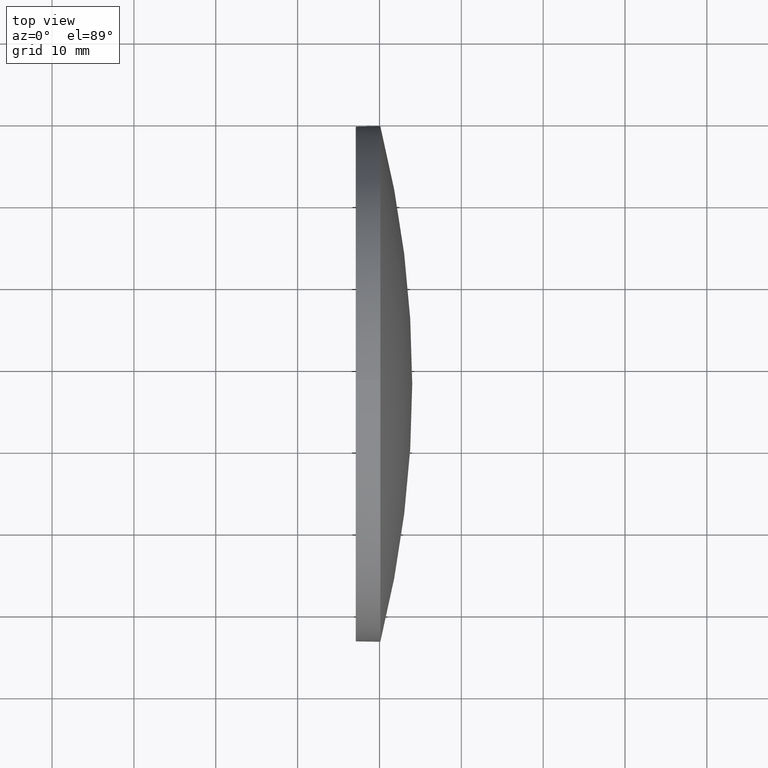
[diagram: clean part render]
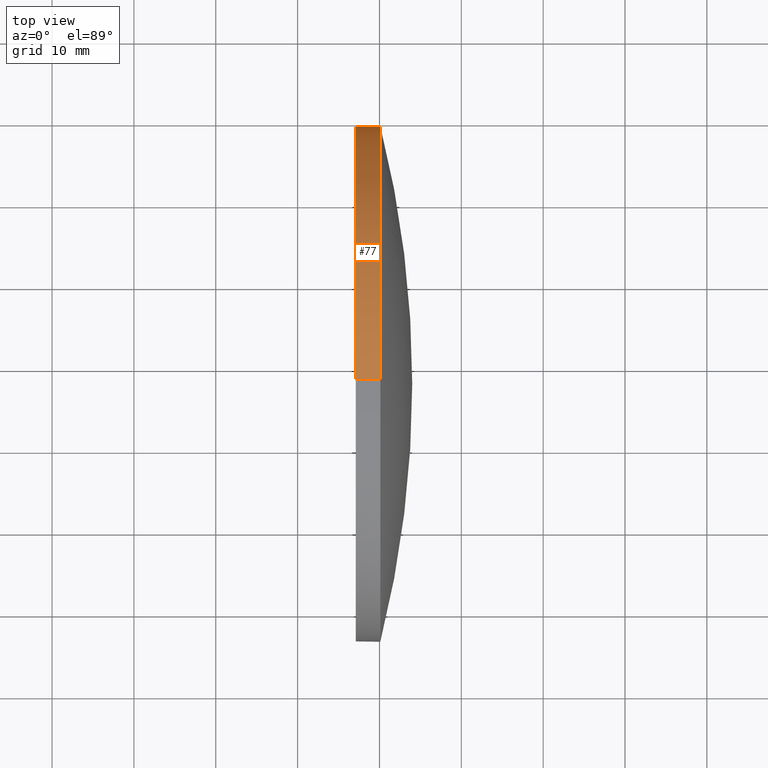
[diagram: same view with one face highlighted and labeled with its STEP entity id]
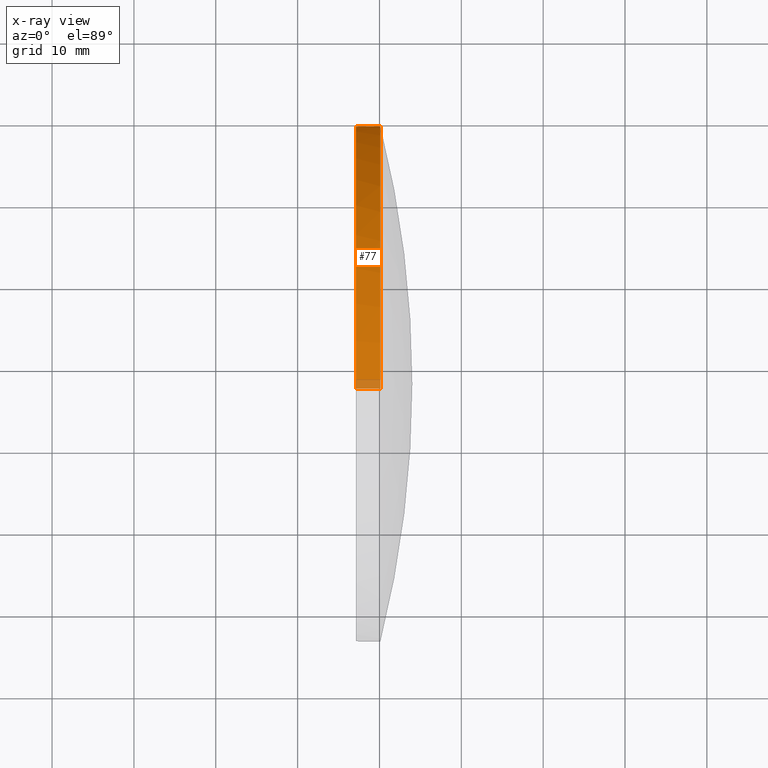
[diagram: x-ray of the same camera — body ghosted, the highlighted face saturated]
A machine part, top view. The second image highlights one B-rep face of the part: STEP entity #77.
The next image is the same camera in x-ray: the body ghosted, the highlighted face saturated — about 3% of this face is hidden behind the body in this view.
In plain terms, the highlighted cylindrical surface (partial cylindrical patch) has radius 31.5 mm, axis along (-1, -0, -0).
Its self-contained STEP definition (entity closure, byte-faithful):
#6 = VERTEX_POINT ( 'NONE', #98 ) ;
#8 = CIRCLE ( 'NONE', #11, 31.50000000000000700 ) ;
#9 = CARTESIAN_POINT ( 'NONE',  ( 458.3320207545457400, 57.89546231009239800, 0.0000000000000000000 ) ) ;
#11 = AXIS2_PLACEMENT_3D ( 'NONE', #161, #90, #185 ) ;
#16 = CARTESIAN_POINT ( 'NONE',  ( 467.1016550187782700, 57.89546231009239800, 31.50000000000000700 ) ) ;
#18 = CIRCLE ( 'NONE', #140, 31.50000000000000700 ) ;
#20 = VECTOR ( 'NONE', #186, 1000.000000000000000 ) ;
#23 = LINE ( 'NONE', #114, #50 ) ;
#25 = DIRECTION ( 'NONE',  ( -1.000000000000000000, -0.0000000000000000000, -0.0000000000000000000 ) ) ;
#28 = EDGE_CURVE ( 'NONE', #6, #155, #23, .T. ) ;
#29 = FACE_OUTER_BOUND ( 'NONE', #68, .T. ) ;
#33 = CARTESIAN_POINT ( 'NONE',  ( 458.3320207545457400, 57.89546231009239800, 31.50000000000000700 ) ) ;
#36 = CARTESIAN_POINT ( 'NONE',  ( 470.1016550187782700, 57.89546231009239800, 0.0000000000000000000 ) ) ;
#37 = DIRECTION ( 'NONE',  ( -1.000000000000000000, -0.0000000000000000000, -0.0000000000000000000 ) ) ;
#41 = DIRECTION ( 'NONE',  ( 0.0000000000000000000, 0.0000000000000000000, 1.000000000000000000 ) ) ;
#50 = VECTOR ( 'NONE', #25, 1000.000000000000000 ) ;
#51 = DIRECTION ( 'NONE',  ( -1.000000000000000000, -0.0000000000000000000, -0.0000000000000000000 ) ) ;
#52 = ORIENTED_EDGE ( 'NONE', *, *, #28, .T. ) ;
#55 = EDGE_CURVE ( 'NONE', #139, #6, #172, .T. ) ;
#57 = DIRECTION ( 'NONE',  ( -1.000000000000000000, -0.0000000000000000000, -0.0000000000000000000 ) ) ;
#58 = LINE ( 'NONE', #33, #20 ) ;
#65 = EDGE_CURVE ( 'NONE', #110, #139, #18, .T. ) ;
#67 = ORIENTED_EDGE ( 'NONE', *, *, #156, .F. ) ;
#68 = EDGE_LOOP ( 'NONE', ( #180, #52, #105, #67, #137 ) ) ;
#73 = CARTESIAN_POINT ( 'NONE',  ( 470.1016550187782700, 89.39546231009238400, 0.0000000000000000000 ) ) ;
#74 = CARTESIAN_POINT ( 'NONE',  ( 470.1016550187782700, 57.89546231009239800, 31.50000000000000700 ) ) ;
#77 = ADVANCED_FACE ( 'NONE', ( #29 ), #145, .T. ) ;
#90 = DIRECTION ( 'NONE',  ( -1.000000000000000000, -0.0000000000000000000, -0.0000000000000000000 ) ) ;
#98 = CARTESIAN_POINT ( 'NONE',  ( 470.1016550187782700, 57.89546231009240500, -31.50000000000000700 ) ) ;
#105 = ORIENTED_EDGE ( 'NONE', *, *, #144, .F. ) ;
#110 = VERTEX_POINT ( 'NONE', #74 ) ;
#114 = CARTESIAN_POINT ( 'NONE',  ( 458.3320207545457400, 57.89546231009240500, -31.50000000000000700 ) ) ;
#118 = CARTESIAN_POINT ( 'NONE',  ( 470.1016550187782700, 57.89546231009239800, 0.0000000000000000000 ) ) ;
#128 = DIRECTION ( 'NONE',  ( 0.0000000000000000000, 0.0000000000000000000, 1.000000000000000000 ) ) ;
#132 = CARTESIAN_POINT ( 'NONE',  ( 467.1016550187782700, 57.89546231009240500, -31.50000000000000700 ) ) ;
#137 = ORIENTED_EDGE ( 'NONE', *, *, #65, .T. ) ;
#139 = VERTEX_POINT ( 'NONE', #73 ) ;
#140 = AXIS2_PLACEMENT_3D ( 'NONE', #118, #57, #41 ) ;
#144 = EDGE_CURVE ( 'NONE', #162, #155, #8, .T. ) ;
#145 = CYLINDRICAL_SURFACE ( 'NONE', #149, 31.50000000000000700 ) ;
#149 = AXIS2_PLACEMENT_3D ( 'NONE', #9, #37, #128 ) ;
#155 = VERTEX_POINT ( 'NONE', #132 ) ;
#156 = EDGE_CURVE ( 'NONE', #110, #162, #58, .T. ) ;
#161 = CARTESIAN_POINT ( 'NONE',  ( 467.1016550187782700, 57.89546231009239800, 0.0000000000000000000 ) ) ;
#162 = VERTEX_POINT ( 'NONE', #16 ) ;
#171 = DIRECTION ( 'NONE',  ( 0.0000000000000000000, 0.0000000000000000000, 1.000000000000000000 ) ) ;
#172 = CIRCLE ( 'NONE', #183, 31.50000000000000700 ) ;
#180 = ORIENTED_EDGE ( 'NONE', *, *, #55, .T. ) ;
#183 = AXIS2_PLACEMENT_3D ( 'NONE', #36, #51, #171 ) ;
#185 = DIRECTION ( 'NONE',  ( 0.0000000000000000000, 0.0000000000000000000, 1.000000000000000000 ) ) ;
#186 = DIRECTION ( 'NONE',  ( -1.000000000000000000, -0.0000000000000000000, -0.0000000000000000000 ) ) ;